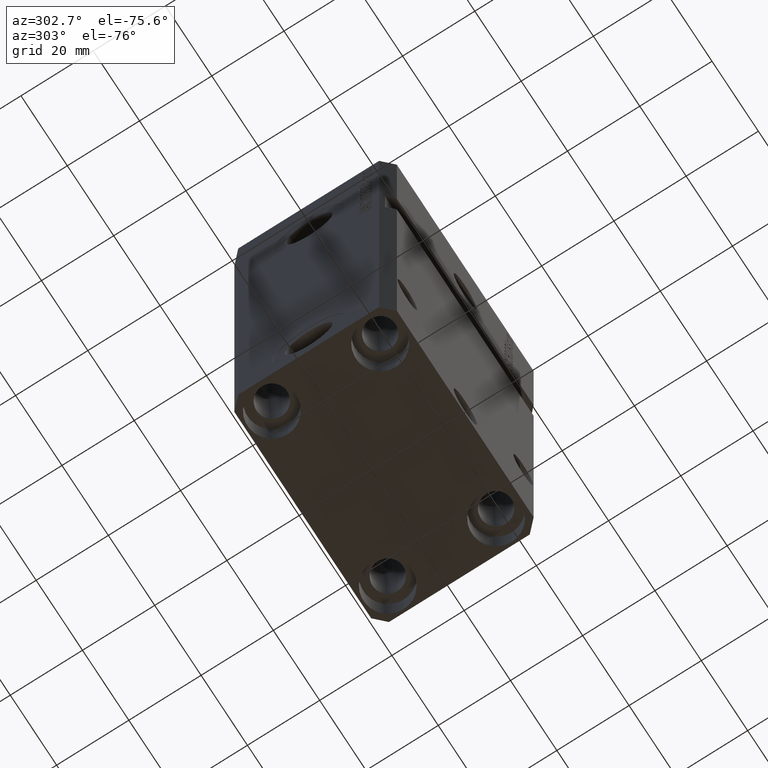
[diagram: clean part render]
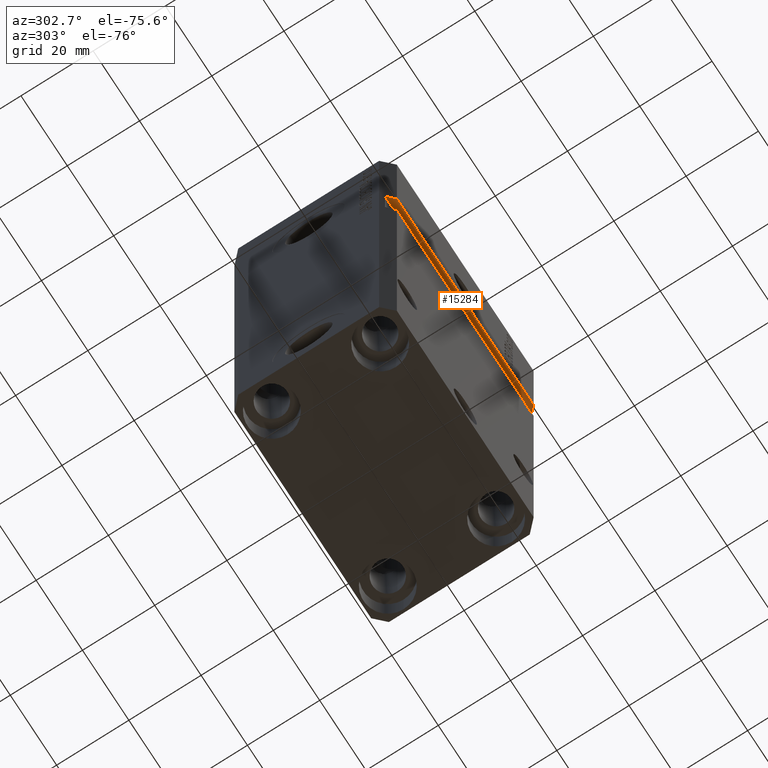
[diagram: same view with one face highlighted and labeled with its STEP entity id]
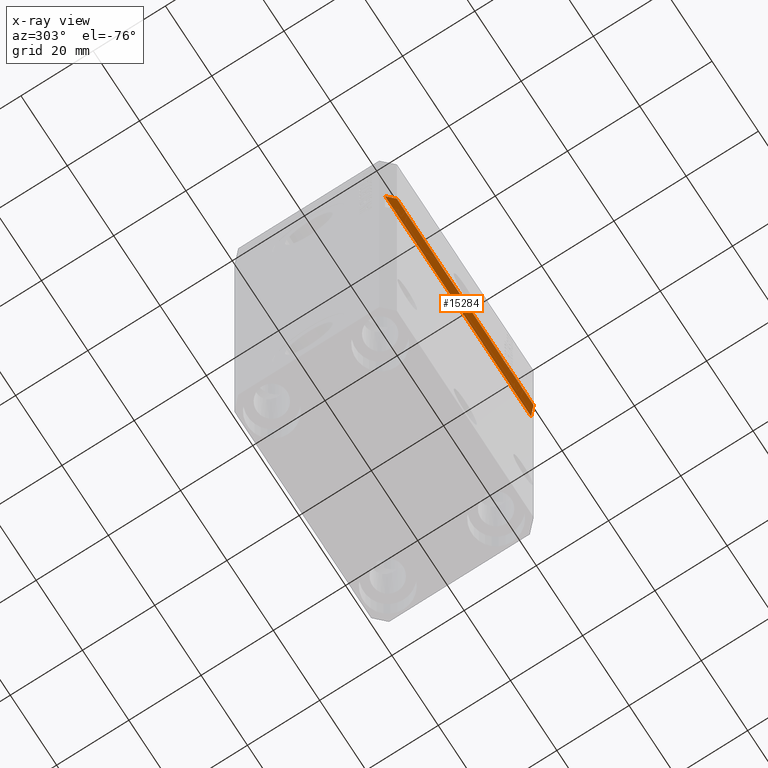
[diagram: x-ray of the same camera — body ghosted, the highlighted face saturated]
A machine part, auxiliary view. The second image highlights one B-rep face of the part: STEP entity #15284.
The next image is the same camera in x-ray: the body ghosted, the highlighted face saturated — about 0% of this face is hidden behind the body in this view.
In plain terms, the highlighted planar face has unit normal (0, 0, 1).
Its self-contained STEP definition (entity closure, byte-faithful):
#1486 = VERTEX_POINT ( 'NONE', #3932 ) ;
#2953 = ORIENTED_EDGE ( 'NONE', *, *, #12209, .F. ) ;
#3510 = VECTOR ( 'NONE', #27558, 1000.000000000000000 ) ;
#3932 = CARTESIAN_POINT ( 'NONE',  ( 29.49999999999650413, -22.49999999999949196, -32.00000000000000711 ) ) ;
#5802 = PLANE ( 'NONE',  #11376 ) ;
#5997 = DIRECTION ( 'NONE',  ( -0.7071067811865474617, 0.7071067811865474617, 7.548521435980497974E-17 ) ) ;
#6644 = DIRECTION ( 'NONE',  ( -1.000000000000000000, -1.067522139062765303E-16, 1.067522139062765303E-16 ) ) ;
#9102 = EDGE_LOOP ( 'NONE', ( #23692, #35014, #39601, #2953 ) ) ;
#9695 = CARTESIAN_POINT ( 'NONE',  ( 32.49999999999650413, -20.49999999999949196, -32.00000000000000711 ) ) ;
#9960 = CARTESIAN_POINT ( 'NONE',  ( 29.49999999999651124, -22.49999999999948486, -32.00000000000000000 ) ) ;
#11376 = AXIS2_PLACEMENT_3D ( 'NONE', #9695, #27157, #19820 ) ;
#12209 = EDGE_CURVE ( 'NONE', #37278, #24674, #38582, .T. ) ;
#13626 = LINE ( 'NONE', #9960, #31566 ) ;
#14558 = CARTESIAN_POINT ( 'NONE',  ( -31.49999999999650413, -20.49999999999950262, -32.00000000000000000 ) ) ;
#15284 = ADVANCED_FACE ( 'NONE', ( #40752 ), #5802, .F. ) ;
#19820 = DIRECTION ( 'NONE',  ( 1.000000000000000000, 0.000000000000000000, -1.067522139062765303E-16 ) ) ;
#20165 = CARTESIAN_POINT ( 'NONE',  ( 31.49999999999651124, -20.49999999999949196, -32.00000000000000711 ) ) ;
#20812 = VECTOR ( 'NONE', #6644, 1000.000000000000000 ) ;
#23692 = ORIENTED_EDGE ( 'NONE', *, *, #31430, .T. ) ;
#24674 = VERTEX_POINT ( 'NONE', #14558 ) ;
#24776 = CARTESIAN_POINT ( 'NONE',  ( 32.49999999999650413, -20.49999999999949196, -32.00000000000000711 ) ) ;
#26219 = LINE ( 'NONE', #37494, #39529 ) ;
#27157 = DIRECTION ( 'NONE',  ( 1.067522139062765303E-16, 1.255495400513475380E-32, 1.000000000000000000 ) ) ;
#27512 = VERTEX_POINT ( 'NONE', #35569 ) ;
#27558 = DIRECTION ( 'NONE',  ( -1.000000000000000000, -1.067522139062765303E-16, 1.067522139062765303E-16 ) ) ;
#31430 = EDGE_CURVE ( 'NONE', #37278, #1486, #13626, .T. ) ;
#31470 = CARTESIAN_POINT ( 'NONE',  ( 32.49999999999650413, -22.49999999999949196, -32.00000000000000711 ) ) ;
#31566 = VECTOR ( 'NONE', #41691, 1000.000000000000000 ) ;
#31700 = LINE ( 'NONE', #31470, #3510 ) ;
#35014 = ORIENTED_EDGE ( 'NONE', *, *, #37048, .T. ) ;
#35569 = CARTESIAN_POINT ( 'NONE',  ( -29.49999999999650058, -22.49999999999949907, -32.00000000000000000 ) ) ;
#37048 = EDGE_CURVE ( 'NONE', #1486, #27512, #31700, .T. ) ;
#37278 = VERTEX_POINT ( 'NONE', #20165 ) ;
#37494 = CARTESIAN_POINT ( 'NONE',  ( -32.49999999999649702, -19.49999999999950617, -32.00000000000000000 ) ) ;
#38582 = LINE ( 'NONE', #24776, #20812 ) ;
#38824 = EDGE_CURVE ( 'NONE', #27512, #24674, #26219, .T. ) ;
#39529 = VECTOR ( 'NONE', #5997, 1000.000000000000114 ) ;
#39601 = ORIENTED_EDGE ( 'NONE', *, *, #38824, .T. ) ;
#40752 = FACE_OUTER_BOUND ( 'NONE', #9102, .T. ) ;
#41691 = DIRECTION ( 'NONE',  ( -0.7071067811865483499, -0.7071067811865467956, 7.548521435980509068E-17 ) ) ;